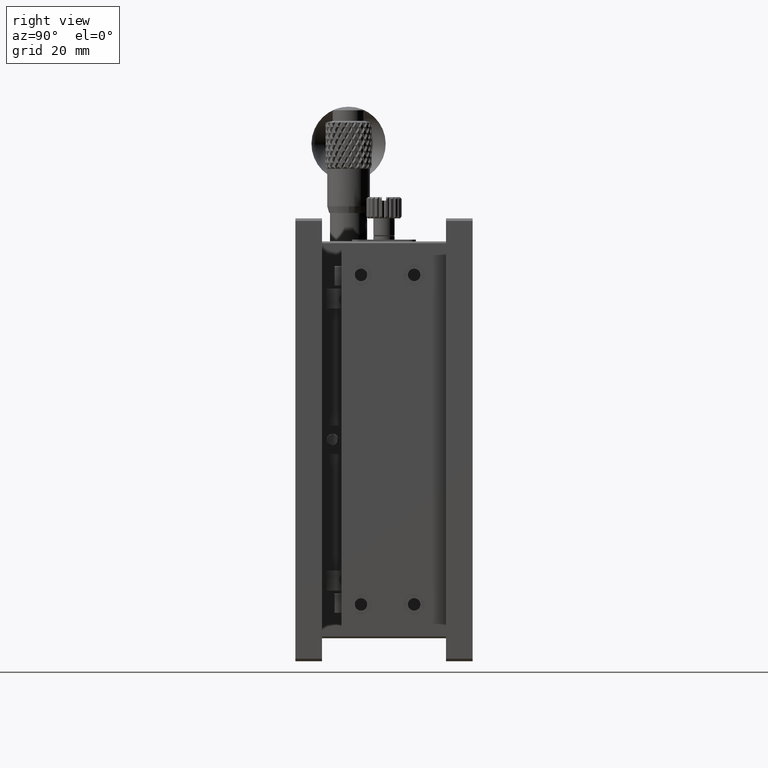
[diagram: clean part render]
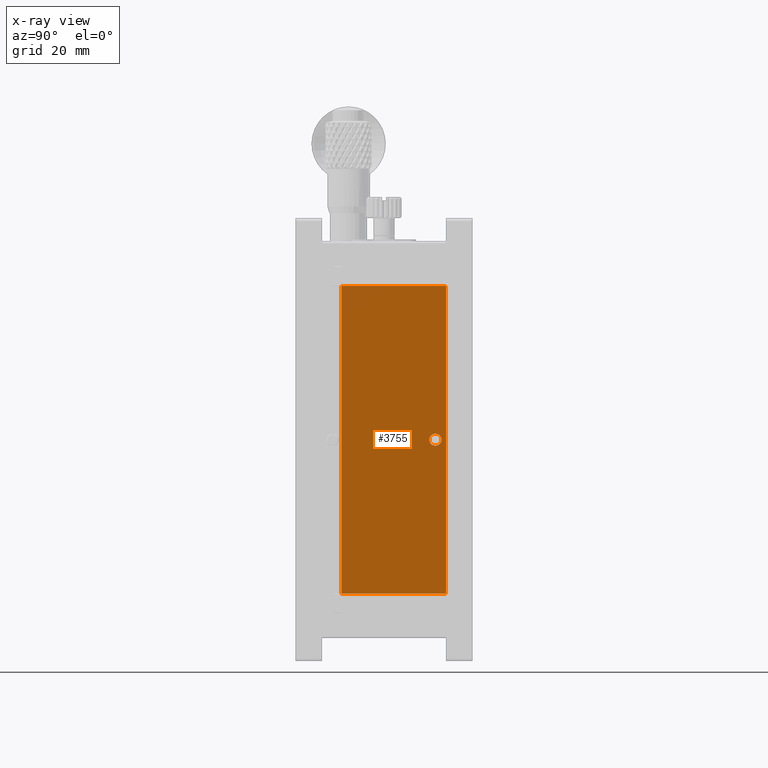
[diagram: x-ray — body ghosted, one internal face saturated and labeled with its STEP entity id]
A machine part, right view, then the same camera in x-ray: the body is ghosted and one INTERNAL B-rep face — a face not visible from any outside direction — is saturated and labeled: STEP entity #3755.
In plain terms, the highlighted planar face has unit normal (1, 0, 0).
Its self-contained STEP definition (entity closure, byte-faithful):
#830 = CARTESIAN_POINT ( 'NONE',  ( 22.50000000000000000, 39.50000000000000000, -60.80000000000000426 ) ) ;
#1091 = ORIENTED_EDGE ( 'NONE', *, *, #17835, .T. ) ;
#2117 = VERTEX_POINT ( 'NONE', #30373 ) ;
#2294 = CIRCLE ( 'NONE', #6573, 1.699999999999993072 ) ;
#2872 = VECTOR ( 'NONE', #30025, 1000.000000000000000 ) ;
#3315 = DIRECTION ( 'NONE',  ( -1.000000000000000000, 0.000000000000000000, 0.000000000000000000 ) ) ;
#3755 = ADVANCED_FACE ( 'NONE', ( #19773, #32118 ), #53002, .T. ) ;
#6573 = AXIS2_PLACEMENT_3D ( 'NONE', #31779, #3315, #44123 ) ;
#14362 = LINE ( 'NONE', #51351, #33863 ) ;
#14399 = ORIENTED_EDGE ( 'NONE', *, *, #21537, .T. ) ;
#17625 = ORIENTED_EDGE ( 'NONE', *, *, #25231, .T. ) ;
#17835 = EDGE_CURVE ( 'NONE', #20849, #2117, #36360, .T. ) ;
#19773 = FACE_BOUND ( 'NONE', #36825, .T. ) ;
#20567 = CARTESIAN_POINT ( 'NONE',  ( 22.50000000000000000, 13.00000000000000533, -19.10000000000000142 ) ) ;
#20849 = VERTEX_POINT ( 'NONE', #41136 ) ;
#21537 = EDGE_CURVE ( 'NONE', #40776, #20849, #14362, .T. ) ;
#23444 = ORIENTED_EDGE ( 'NONE', *, *, #40221, .T. ) ;
#25231 = EDGE_CURVE ( 'NONE', #45916, #45916, #2294, .T. ) ;
#29437 = AXIS2_PLACEMENT_3D ( 'NONE', #20567, #36927, #40417 ) ;
#29747 = EDGE_LOOP ( 'NONE', ( #14399, #1091, #48188, #23444 ) ) ;
#29808 = VECTOR ( 'NONE', #52184, 1000.000000000000000 ) ;
#30025 = DIRECTION ( 'NONE',  ( 0.000000000000000000, -1.000000000000000000, -0.000000000000000000 ) ) ;
#30279 = LINE ( 'NONE', #46368, #2872 ) ;
#30373 = CARTESIAN_POINT ( 'NONE',  ( 22.50000000000000000, 42.50000000000000000, -105.9000000000000057 ) ) ;
#31779 = CARTESIAN_POINT ( 'NONE',  ( 22.50000000000000000, 39.50000000000000000, -62.50000000000000000 ) ) ;
#32118 = FACE_OUTER_BOUND ( 'NONE', #29747, .T. ) ;
#33861 = CARTESIAN_POINT ( 'NONE',  ( 22.50000000000000000, 42.50000000000000000, 0.000000000000000000 ) ) ;
#33863 = VECTOR ( 'NONE', #43603, 1000.000000000000000 ) ;
#36360 = LINE ( 'NONE', #47644, #29808 ) ;
#36825 = EDGE_LOOP ( 'NONE', ( #17625 ) ) ;
#36927 = DIRECTION ( 'NONE',  ( 1.000000000000000000, 0.000000000000000000, 7.994117400814780061E-17 ) ) ;
#38684 = DIRECTION ( 'NONE',  ( 0.000000000000000000, -0.000000000000000000, 1.000000000000000000 ) ) ;
#38740 = CARTESIAN_POINT ( 'NONE',  ( 22.50000000000000000, 13.00000000000000533, -19.10000000000000142 ) ) ;
#40221 = EDGE_CURVE ( 'NONE', #41354, #40776, #30279, .T. ) ;
#40417 = DIRECTION ( 'NONE',  ( 7.994117400814780061E-17, 0.000000000000000000, -1.000000000000000000 ) ) ;
#40776 = VERTEX_POINT ( 'NONE', #38740 ) ;
#41080 = EDGE_CURVE ( 'NONE', #2117, #41354, #50455, .T. ) ;
#41136 = CARTESIAN_POINT ( 'NONE',  ( 22.50000000000000000, 13.00000000000000533, -105.9000000000000057 ) ) ;
#41354 = VERTEX_POINT ( 'NONE', #50324 ) ;
#41629 = VECTOR ( 'NONE', #38684, 1000.000000000000000 ) ;
#43603 = DIRECTION ( 'NONE',  ( 7.994117400814780061E-17, 0.000000000000000000, -1.000000000000000000 ) ) ;
#44123 = DIRECTION ( 'NONE',  ( 0.000000000000000000, 0.000000000000000000, 1.000000000000000000 ) ) ;
#45916 = VERTEX_POINT ( 'NONE', #830 ) ;
#46368 = CARTESIAN_POINT ( 'NONE',  ( 22.50000000000000000, 13.00000000000000533, -19.10000000000000142 ) ) ;
#47644 = CARTESIAN_POINT ( 'NONE',  ( 22.50000000000000711, 13.00000000000000533, -105.9000000000000057 ) ) ;
#48188 = ORIENTED_EDGE ( 'NONE', *, *, #41080, .T. ) ;
#50324 = CARTESIAN_POINT ( 'NONE',  ( 22.50000000000000000, 42.50000000000000000, -19.10000000000000142 ) ) ;
#50455 = LINE ( 'NONE', #33861, #41629 ) ;
#51351 = CARTESIAN_POINT ( 'NONE',  ( 22.50000000000000000, 13.00000000000000533, -19.10000000000000142 ) ) ;
#52184 = DIRECTION ( 'NONE',  ( -0.000000000000000000, 1.000000000000000000, 0.000000000000000000 ) ) ;
#53002 = PLANE ( 'NONE',  #29437 ) ;